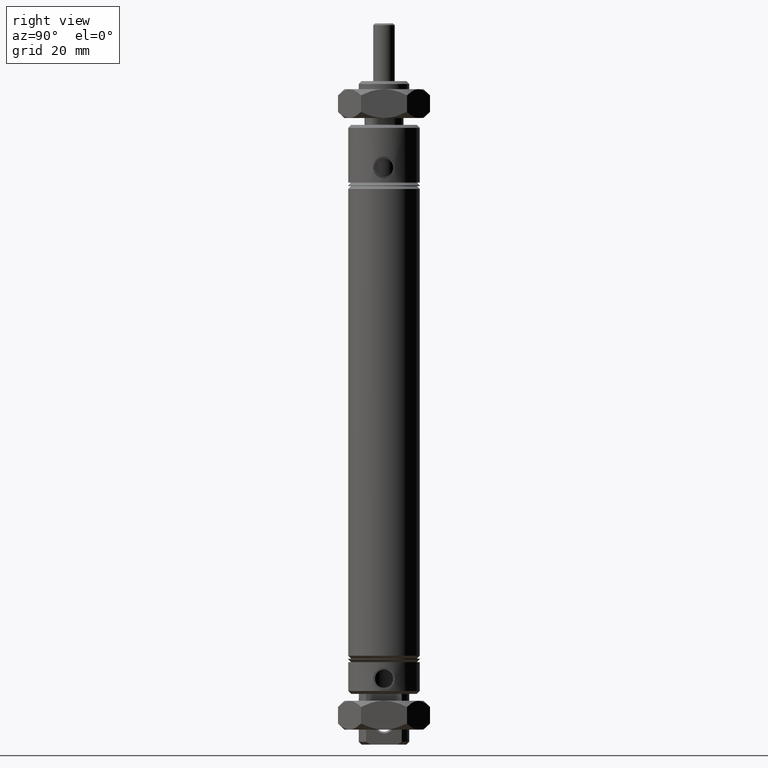
[diagram: clean part render]
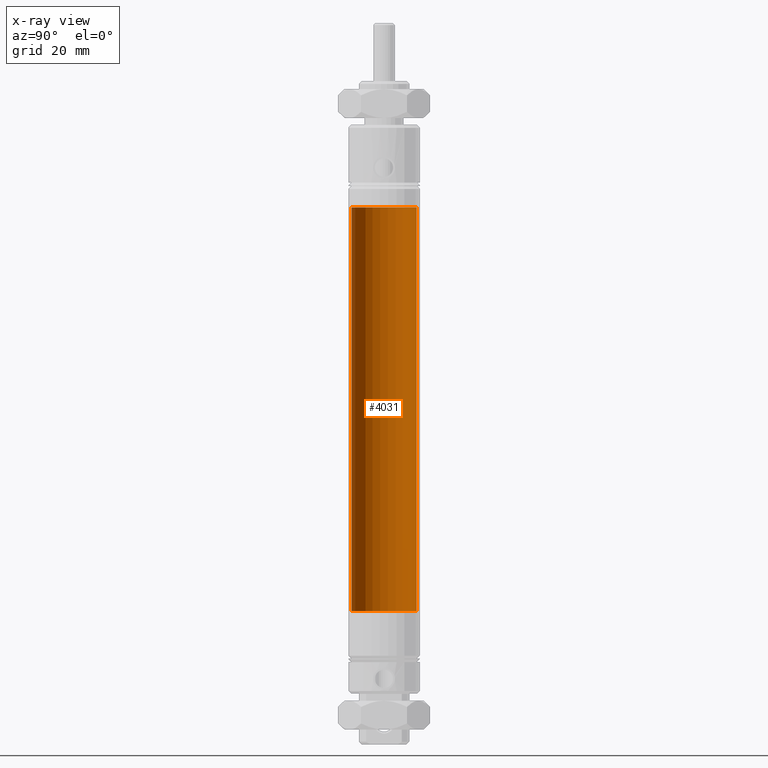
[diagram: x-ray — body ghosted, one internal face saturated and labeled with its STEP entity id]
A machine part, right view, then the same camera in x-ray: the body is ghosted and one INTERNAL B-rep face — a face not visible from any outside direction — is saturated and labeled: STEP entity #4031.
In plain terms, the highlighted cylindrical surface (edge-blend (fillet) strip) has radius 7.1438 mm, axis along (0, 0, -1).
Its self-contained STEP definition (entity closure, byte-faithful):
#119 = AXIS2_PLACEMENT_3D ( 'NONE', #3183, #1639, #3827 ) ;
#149 = CARTESIAN_POINT ( 'NONE',  ( 0.0000000000000000000, 0.2812500000000000000, -1.095000000000000200 ) ) ;
#317 = CARTESIAN_POINT ( 'NONE',  ( 3.444319122601939000E-017, -0.2812500000000009400, -1.095000000000000200 ) ) ;
#499 = EDGE_CURVE ( 'NONE', #3881, #3849, #1461, .T. ) ;
#723 = VECTOR ( 'NONE', #2295, 39.37007874015748100 ) ;
#797 = AXIS2_PLACEMENT_3D ( 'NONE', #3504, #1632, #3822 ) ;
#851 = EDGE_LOOP ( 'NONE', ( #1345, #2872, #2383, #1780 ) ) ;
#854 = DIRECTION ( 'NONE',  ( -0.0000000000000000000, 8.860047547019231000E-017, -1.000000000000000000 ) ) ;
#953 = FACE_OUTER_BOUND ( 'NONE', #851, .T. ) ;
#1208 = EDGE_CURVE ( 'NONE', #2730, #3849, #2638, .T. ) ;
#1256 = CIRCLE ( 'NONE', #797, 0.2812500000000005000 ) ;
#1282 = CARTESIAN_POINT ( 'NONE',  ( 3.444319122601934100E-017, -0.2812500000000003300, -4.595000000000000600 ) ) ;
#1345 = ORIENTED_EDGE ( 'NONE', *, *, #2158, .F. ) ;
#1404 = DIRECTION ( 'NONE',  ( -0.0000000000000000000, 8.860047547019231000E-017, -1.000000000000000000 ) ) ;
#1461 = LINE ( 'NONE', #3851, #723 ) ;
#1632 = DIRECTION ( 'NONE',  ( -0.0000000000000000000, 8.860047547019231000E-017, -1.000000000000000000 ) ) ;
#1639 = DIRECTION ( 'NONE',  ( -0.0000000000000000000, 8.860047547019231000E-017, -1.000000000000000000 ) ) ;
#1780 = ORIENTED_EDGE ( 'NONE', *, *, #499, .F. ) ;
#2158 = EDGE_CURVE ( 'NONE', #2636, #3881, #1256, .T. ) ;
#2295 = DIRECTION ( 'NONE',  ( -0.0000000000000000000, 8.860047547019231000E-017, -1.000000000000000000 ) ) ;
#2335 = EDGE_CURVE ( 'NONE', #2636, #2730, #3906, .T. ) ;
#2383 = ORIENTED_EDGE ( 'NONE', *, *, #1208, .T. ) ;
#2608 = CARTESIAN_POINT ( 'NONE',  ( 0.0000000000000000000, 0.2812500000000000000, -4.595000000000000600 ) ) ;
#2636 = VERTEX_POINT ( 'NONE', #317 ) ;
#2638 = CIRCLE ( 'NONE', #119, 0.2812500000000001700 ) ;
#2730 = VERTEX_POINT ( 'NONE', #1282 ) ;
#2872 = ORIENTED_EDGE ( 'NONE', *, *, #2335, .T. ) ;
#3029 = DIRECTION ( 'NONE',  ( 0.0000000000000000000, 1.000000000000000000, 0.0000000000000000000 ) ) ;
#3059 = VECTOR ( 'NONE', #1404, 39.37007874015748100 ) ;
#3139 = CYLINDRICAL_SURFACE ( 'NONE', #3909, 0.2812500000000003300 ) ;
#3183 = CARTESIAN_POINT ( 'NONE',  ( 0.0000000000000000000, -1.706297490096787100E-016, -4.595000000000000600 ) ) ;
#3504 = CARTESIAN_POINT ( 'NONE',  ( 0.0000000000000000000, -4.807314131553517800E-016, -1.095000000000000200 ) ) ;
#3578 = CARTESIAN_POINT ( 'NONE',  ( 3.444319122601935300E-017, -0.2812500000000003900, -5.750000000000000900 ) ) ;
#3822 = DIRECTION ( 'NONE',  ( 0.0000000000000000000, 1.000000000000000000, 0.0000000000000000000 ) ) ;
#3827 = DIRECTION ( 'NONE',  ( 0.0000000000000000000, 1.000000000000000000, 0.0000000000000000000 ) ) ;
#3849 = VERTEX_POINT ( 'NONE', #2608 ) ;
#3851 = CARTESIAN_POINT ( 'NONE',  ( 0.0000000000000000000, 0.2812500000000002200, -5.750000000000000900 ) ) ;
#3881 = VERTEX_POINT ( 'NONE', #149 ) ;
#3906 = LINE ( 'NONE', #3578, #3059 ) ;
#3909 = AXIS2_PLACEMENT_3D ( 'NONE', #3974, #854, #3029 ) ;
#3974 = CARTESIAN_POINT ( 'NONE',  ( 0.0000000000000000000, -6.829619984160658000E-017, -5.750000000000000900 ) ) ;
#4031 = ADVANCED_FACE ( 'NONE', ( #953 ), #3139, .F. ) ;